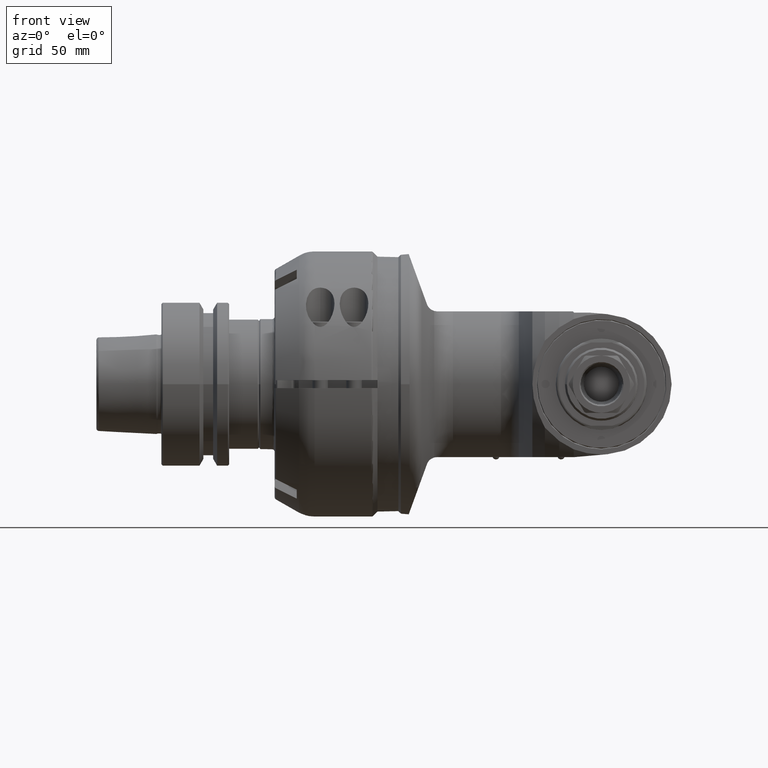
[diagram: clean part render]
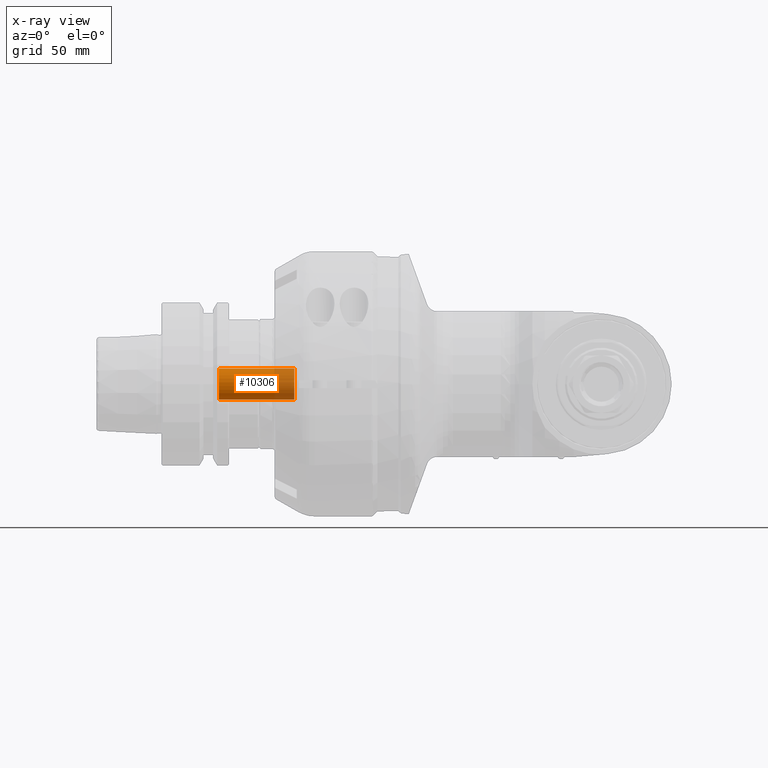
[diagram: x-ray — body ghosted, one internal face saturated and labeled with its STEP entity id]
A machine part, front view, then the same camera in x-ray: the body is ghosted and one INTERNAL B-rep face — a face not visible from any outside direction — is saturated and labeled: STEP entity #10306.
In plain terms, the highlighted cylindrical surface (bore or boss wall) has radius 6 mm, axis along (-1, 0, 0).
Its self-contained STEP definition (entity closure, byte-faithful):
#895=LINE('',#21143,#1535);
#1535=VECTOR('',#14247,6.);
#1799=CYLINDRICAL_SURFACE('',#11469,6.);
#2624=FACE_OUTER_BOUND('',#3283,.T.);
#3283=EDGE_LOOP('',(#9091,#9092,#9093,#9094));
#3974=CIRCLE('',#11468,6.);
#3975=CIRCLE('',#11470,6.);
#4955=VERTEX_POINT('',#21138);
#4956=VERTEX_POINT('',#21141);
#6390=EDGE_CURVE('',#4955,#4955,#3974,.T.);
#6391=EDGE_CURVE('',#4956,#4956,#3975,.T.);
#6392=EDGE_CURVE('',#4956,#4955,#895,.T.);
#9091=ORIENTED_EDGE('',*,*,#6391,.F.);
#9092=ORIENTED_EDGE('',*,*,#6392,.T.);
#9093=ORIENTED_EDGE('',*,*,#6390,.T.);
#9094=ORIENTED_EDGE('',*,*,#6392,.F.);
#10306=ADVANCED_FACE('',(#2624),#1799,.T.);
#11468=AXIS2_PLACEMENT_3D('',#21139,#14241,#14242);
#11469=AXIS2_PLACEMENT_3D('',#21140,#14243,#14244);
#11470=AXIS2_PLACEMENT_3D('',#21142,#14245,#14246);
#14241=DIRECTION('center_axis',(-1.,0.,0.));
#14242=DIRECTION('ref_axis',(0.,0.,-1.));
#14243=DIRECTION('center_axis',(-1.,0.,0.));
#14244=DIRECTION('ref_axis',(0.,0.,1.));
#14245=DIRECTION('center_axis',(-1.,0.,0.));
#14246=DIRECTION('ref_axis',(0.,0.,-1.));
#14247=DIRECTION('',(1.,0.,0.));
#21138=CARTESIAN_POINT('',(-28.,0.,-6.));
#21139=CARTESIAN_POINT('Origin',(-28.,0.,0.));
#21140=CARTESIAN_POINT('Origin',(-19.65,0.,0.));
#21141=CARTESIAN_POINT('',(-57.,0.,-6.));
#21142=CARTESIAN_POINT('Origin',(-57.,0.,0.));
#21143=CARTESIAN_POINT('',(-19.65,-7.34788079488412E-16,-6.));